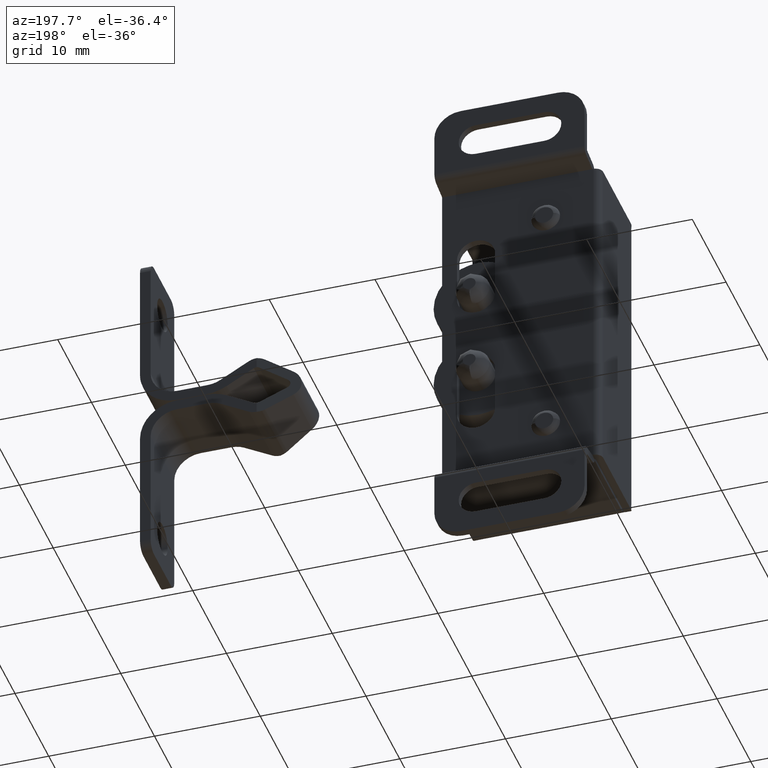
[diagram: clean part render]
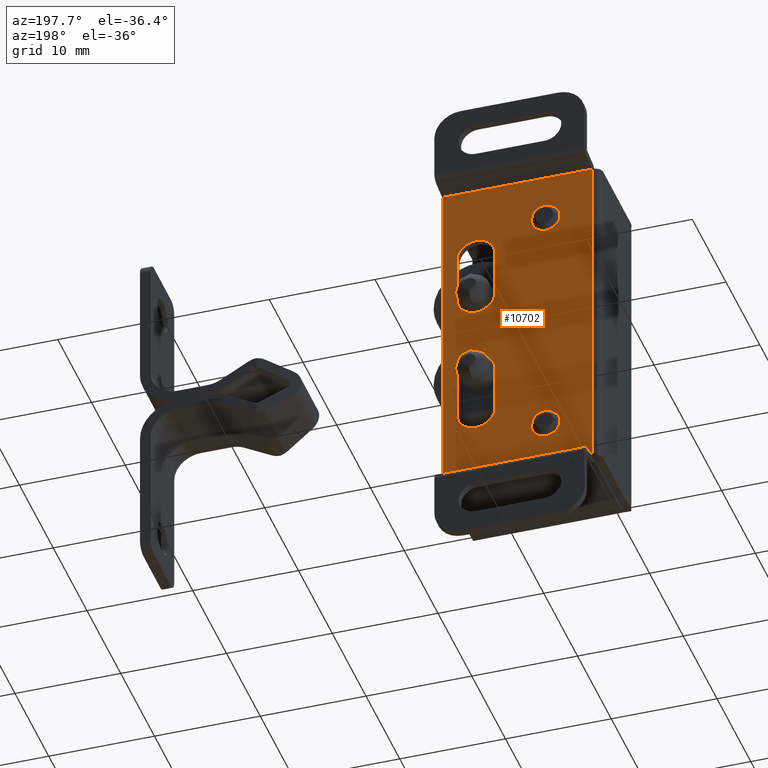
[diagram: same view with one face highlighted and labeled with its STEP entity id]
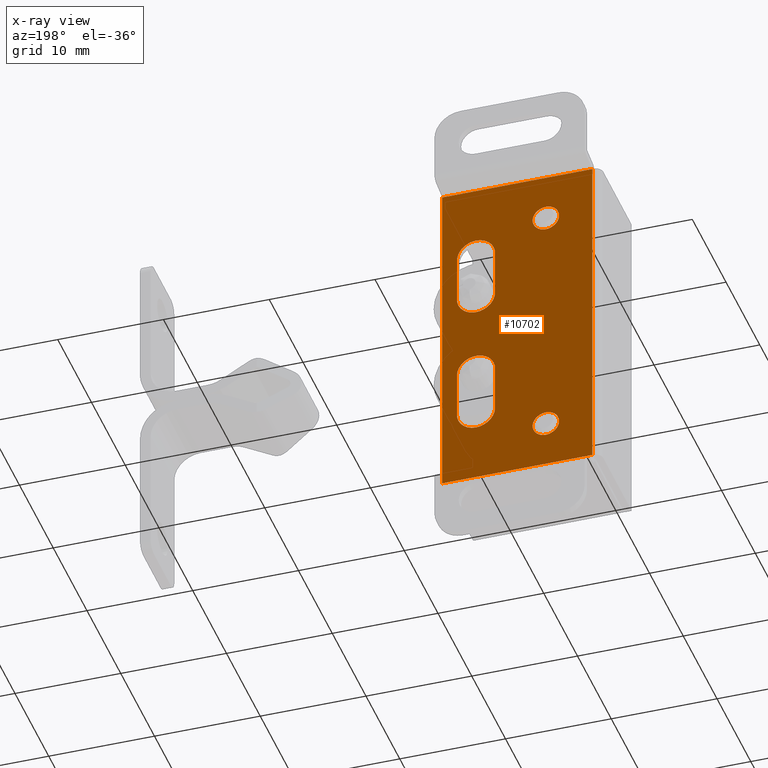
[diagram: x-ray of the same camera — body ghosted, the highlighted face saturated]
A machine part, auxiliary view. The second image highlights one B-rep face of the part: STEP entity #10702.
The next image is the same camera in x-ray: the body ghosted, the highlighted face saturated — about 0% of this face is hidden behind the body in this view.
In plain terms, the highlighted face is a freeform B-spline surface patch.
Its self-contained STEP definition (entity closure, byte-faithful):
#6928=CARTESIAN_POINT('',(-3.541562949340214,-2.299987999995877,-7.623863601232861));
#6929=VERTEX_POINT('',#6928);
#6930=CARTESIAN_POINT('',(-3.899999999999725,-2.299988000000750,-8.500000829116800));
#6931=VERTEX_POINT('',#6930);
#6932=CARTESIAN_POINT('',(-3.541562949340214,-2.299987999995877,-7.623863601232861));
#6933=CARTESIAN_POINT('',(-3.619562462102685,-2.299987999996320,-7.703185542203550));
#6934=CARTESIAN_POINT('',(-3.748020511466764,-2.299987999997272,-7.874672480167555));
#6935=CARTESIAN_POINT('',(-3.871469899992608,-2.299987999998952,-8.176400939124711));
#6936=CARTESIAN_POINT('',(-3.900032646125774,-2.299988000000128,-8.388754368270066));
#6937=CARTESIAN_POINT('',(-3.899999999999725,-2.299988000000750,-8.500000829116800));
#6938=B_SPLINE_CURVE_WITH_KNOTS('',3,(#6932,#6933,#6934,#6935,#6936,#6937),.UNSPECIFIED.,.F.,.U.,(4,1,1,4),(0.000000012919390,0.333737889316278,0.637126041490438,0.970863917909186),.UNSPECIFIED.);
#6939=EDGE_CURVE('',#6929,#6931,#6938,.T.);
#6999=CARTESIAN_POINT('',(-1.773863308124251,-2.299988000005520,-7.608436757561162));
#7000=VERTEX_POINT('',#6999);
#7006=CARTESIAN_POINT('',(-1.400000000000275,-2.299988000000750,-8.499999170883200));
#7007=VERTEX_POINT('',#7006);
#7008=CARTESIAN_POINT('',(-1.400000000000275,-2.299988000000750,-8.499999170883200));
#7009=CARTESIAN_POINT('',(-1.399954569368666,-2.299988000001359,-8.386251429322041));
#7010=CARTESIAN_POINT('',(-1.424175943017078,-2.299988000002297,-8.210497818273730));
#7011=CARTESIAN_POINT('',(-1.537122024799070,-2.299988000003968,-7.898496758450788));
#7012=CARTESIAN_POINT('',(-1.663109979836927,-2.299988000004940,-7.717061370083966));
#7013=CARTESIAN_POINT('',(-1.773863308124251,-2.299988000005520,-7.608436757561162));
#7014=B_SPLINE_CURVE_WITH_KNOTS('',3,(#7008,#7009,#7010,#7011,#7012,#7013),.UNSPECIFIED.,.F.,.U.,(4,1,1,4),(7.948059E-009,0.341234144013857,0.527361488337864,0.992680778465412),.UNSPECIFIED.);
#7015=EDGE_CURVE('',#7007,#7000,#7014,.T.);
#7017=CARTESIAN_POINT('',(-2.650000000000000,-2.299988000000750,-9.750000000000000));
#7018=VERTEX_POINT('',#7017);
#7019=CARTESIAN_POINT('',(-2.650000000000000,-2.299988000000750,-9.750000000000000));
#7020=CARTESIAN_POINT('',(-2.496578360806369,-2.299988000000751,-9.750143634505113));
#7021=CARTESIAN_POINT('',(-2.261472606949126,-2.299988000000749,-9.706131781038433));
#7022=CARTESIAN_POINT('',(-1.995301082631591,-2.299988000000753,-9.572106423024371));
#7023=CARTESIAN_POINT('',(-1.805861456801641,-2.299988000000746,-9.431618560850357));
#7024=CARTESIAN_POINT('',(-1.644795929768097,-2.299988000000744,-9.258245188719597));
#7025=CARTESIAN_POINT('',(-1.512726247500317,-2.299988000000762,-9.037890919326291));
#7026=CARTESIAN_POINT('',(-1.422722553807710,-2.299988000000746,-8.786328000139640));
#7027=CARTESIAN_POINT('',(-1.399971978766821,-2.299988000000754,-8.602266561734709));
#7028=CARTESIAN_POINT('',(-1.400000000000275,-2.299988000000750,-8.499999170883200));
#7029=B_SPLINE_CURVE_WITH_KNOTS('',3,(#7019,#7020,#7021,#7022,#7023,#7024,#7025,#7026,#7027,#7028),.UNSPECIFIED.,.F.,.U.,(4,1,1,1,1,1,1,4),(0.000000017902722,0.460204813831300,0.705654203425540,0.889732975772120,1.165849819909288,1.411295517278129,1.656747095446491,1.963545147733822),.UNSPECIFIED.);
#7030=EDGE_CURVE('',#7018,#7007,#7029,.T.);
#7032=CARTESIAN_POINT('',(-3.899999999999725,-2.299988000000750,-8.500000829116800));
#7033=CARTESIAN_POINT('',(-3.900078944133992,-2.299988000000750,-8.632956427035305));
#7034=CARTESIAN_POINT('',(-3.865395596078050,-2.299988000000749,-8.847660215561453));
#7035=CARTESIAN_POINT('',(-3.744618282675718,-2.299988000000754,-9.120095054182587));
#7036=CARTESIAN_POINT('',(-3.584877961045416,-2.299988000000742,-9.346949767953571));
#7037=CARTESIAN_POINT('',(-3.360687845894720,-2.299988000000767,-9.545209368983453));
#7038=CARTESIAN_POINT('',(-3.038544009096587,-2.299988000000723,-9.707335331827570));
#7039=CARTESIAN_POINT('',(-2.793187401281901,-2.299988000000784,-9.750110869173012));
#7040=CARTESIAN_POINT('',(-2.650000000000000,-2.299988000000750,-9.750000000000000));
#7041=B_SPLINE_CURVE_WITH_KNOTS('',3,(#7032,#7033,#7034,#7035,#7036,#7037,#7038,#7039,#7040),.UNSPECIFIED.,.F.,.U.,(4,1,1,1,1,1,4),(0.000000019040912,0.398841272213958,0.644292762528633,0.889732554173083,1.227209115856783,1.534021483307861,1.963544213102614),.UNSPECIFIED.);
#7042=EDGE_CURVE('',#6931,#7018,#7041,.T.);
#7061=CARTESIAN_POINT('',(-2.650000000000000,-2.299988000000750,-7.250000000000000));
#7062=VERTEX_POINT('',#7061);
#7063=CARTESIAN_POINT('',(-2.650000000000000,-2.299988000000750,-7.250000000000000));
#7064=CARTESIAN_POINT('',(-2.763744818870896,-2.299988000000126,-7.249964421117529));
#7065=CARTESIAN_POINT('',(-2.960187381217350,-2.299987999999062,-7.277004973505614));
#7066=CARTESIAN_POINT('',(-3.269939011954360,-2.299987999997354,-7.397947257608832));
#7067=CARTESIAN_POINT('',(-3.447396324833393,-2.299987999996400,-7.527918605888487));
#7068=CARTESIAN_POINT('',(-3.541562949340214,-2.299987999995877,-7.623863601232861));
#7069=B_SPLINE_CURVE_WITH_KNOTS('',3,(#7063,#7064,#7065,#7066,#7067,#7068),.UNSPECIFIED.,.F.,.U.,(4,1,1,4),(7.927626E-009,0.341234373714027,0.589404374629492,0.992681446685964),.UNSPECIFIED.);
#7070=EDGE_CURVE('',#7062,#6929,#7069,.T.);
#7072=CARTESIAN_POINT('',(-1.773863308124251,-2.299988000005520,-7.608436757561162));
#7073=CARTESIAN_POINT('',(-1.853185328979082,-2.299988000005088,-7.530437278162631));
#7074=CARTESIAN_POINT('',(-2.024672238474843,-2.299988000004155,-7.401979370465022));
#7075=CARTESIAN_POINT('',(-2.326400358022668,-2.299988000002510,-7.278530161139138));
#7076=CARTESIAN_POINT('',(-2.538753583863379,-2.299988000001355,-7.249967489685439));
#7077=CARTESIAN_POINT('',(-2.650000000000000,-2.299988000000750,-7.250000000000000));
#7078=B_SPLINE_CURVE_WITH_KNOTS('',3,(#7072,#7073,#7074,#7075,#7076,#7077),.UNSPECIFIED.,.F.,.U.,(4,1,1,4),(0.000000012900579,0.333737660866299,0.637125605379456,0.970863253323287),.UNSPECIFIED.);
#7079=EDGE_CURVE('',#7000,#7062,#7078,.T.);
#7328=CARTESIAN_POINT('',(-3.541562949340214,-2.299987999995877,-30.623863601232859));
#7329=VERTEX_POINT('',#7328);
#7330=CARTESIAN_POINT('',(-3.899999999999725,-2.299988000000750,-31.500000829116800));
#7331=VERTEX_POINT('',#7330);
#7332=CARTESIAN_POINT('',(-3.541562949340214,-2.299987999995877,-30.623863601232859));
#7333=CARTESIAN_POINT('',(-3.648004415012986,-2.299987999996478,-30.731976927571761));
#7334=CARTESIAN_POINT('',(-3.780267967002692,-2.299987999997569,-30.927966734807711));
#7335=CARTESIAN_POINT('',(-3.881137305279959,-2.299987999999288,-31.237070594451829));
#7336=CARTESIAN_POINT('',(-3.900016112612316,-2.299988000000248,-31.408983734035068));
#7337=CARTESIAN_POINT('',(-3.899999999999725,-2.299988000000750,-31.500000829116800));
#7338=B_SPLINE_CURVE_WITH_KNOTS('',3,(#7332,#7333,#7334,#7335,#7336,#7337),.UNSPECIFIED.,.F.,.U.,(4,1,1,4),(0.000000012919637,0.455094484843803,0.697807124153792,0.970863917909188),.UNSPECIFIED.);
#7339=EDGE_CURVE('',#7329,#7331,#7338,.T.);
#7400=CARTESIAN_POINT('',(-1.773863308124251,-2.299988000005520,-30.608436757561162));
#7401=VERTEX_POINT('',#7400);
#7407=CARTESIAN_POINT('',(-1.400000000000275,-2.299988000000750,-31.499999170883200));
#7408=VERTEX_POINT('',#7407);
#7409=CARTESIAN_POINT('',(-1.400000000000275,-2.299988000000750,-31.499999170883200));
#7410=CARTESIAN_POINT('',(-1.399849578204989,-2.299988000001580,-31.344870826045408));
#7411=CARTESIAN_POINT('',(-1.444860728616615,-2.299988000002856,-31.107161350440460));
#7412=CARTESIAN_POINT('',(-1.595945432916498,-2.299988000004431,-30.810936113919681));
#7413=CARTESIAN_POINT('',(-1.707472509281692,-2.299988000005172,-30.673652551486150));
#7414=CARTESIAN_POINT('',(-1.773863308124251,-2.299988000005520,-30.608436757561162));
#7415=B_SPLINE_CURVE_WITH_KNOTS('',3,(#7409,#7410,#7411,#7412,#7413,#7414),.UNSPECIFIED.,.F.,.U.,(4,1,1,4),(7.947728E-009,0.465319298045852,0.713489296250173,0.992680778465414),.UNSPECIFIED.);
#7416=EDGE_CURVE('',#7408,#7401,#7415,.T.);
#7418=CARTESIAN_POINT('',(-2.650000000000000,-2.299988000000750,-32.750000000000000));
#7419=VERTEX_POINT('',#7418);
#7420=CARTESIAN_POINT('',(-2.650000000000000,-2.299988000000750,-32.750000000000000));
#7421=CARTESIAN_POINT('',(-2.517046344154720,-2.299988000000752,-32.750066285231647));
#7422=CARTESIAN_POINT('',(-2.302342520505152,-2.299988000000750,-32.715403724987688));
#7423=CARTESIAN_POINT('',(-1.982903388613184,-2.299988000000750,-32.573828337150502));
#7424=CARTESIAN_POINT('',(-1.748401482522974,-2.299988000000749,-32.386188048743442));
#7425=CARTESIAN_POINT('',(-1.570942895640592,-2.299988000000750,-32.146760716479442));
#7426=CARTESIAN_POINT('',(-1.439078853839953,-2.299988000000751,-31.868098083755349));
#7427=CARTESIAN_POINT('',(-1.399915065108486,-2.299988000000750,-31.643182883535740));
#7428=CARTESIAN_POINT('',(-1.400000000000275,-2.299988000000750,-31.499999170883200));
#7429=B_SPLINE_CURVE_WITH_KNOTS('',3,(#7420,#7421,#7422,#7423,#7424,#7425,#7426,#7427,#7428),.UNSPECIFIED.,.F.,.U.,(4,1,1,1,1,1,4),(0.000000017903906,0.398841461106950,0.644293068158105,1.043131879065077,1.288570635059767,1.534022213727042,1.963545147733824),.UNSPECIFIED.);
#7430=EDGE_CURVE('',#7419,#7408,#7429,.T.);
#7432=CARTESIAN_POINT('',(-3.899999999999725,-2.299988000000750,-31.500000829116800));
#7433=CARTESIAN_POINT('',(-3.900066839262281,-2.299988000000750,-31.632954655605030));
#7434=CARTESIAN_POINT('',(-3.865403360709047,-2.299988000000754,-31.847658142285781));
#7435=CARTESIAN_POINT('',(-3.723829077207948,-2.299988000000743,-32.167097160547982));
#7436=CARTESIAN_POINT('',(-3.536188542019236,-2.299988000000761,-32.401599156452512));
#7437=CARTESIAN_POINT('',(-3.296761390457250,-2.299988000000729,-32.579057801481369));
#7438=CARTESIAN_POINT('',(-3.018098522248495,-2.299988000000797,-32.710920888896588));
#7439=CARTESIAN_POINT('',(-2.793183852503006,-2.299988000000720,-32.750084616628072));
#7440=CARTESIAN_POINT('',(-2.650000000000000,-2.299988000000750,-32.750000000000000));
#7441=B_SPLINE_CURVE_WITH_KNOTS('',3,(#7432,#7433,#7434,#7435,#7436,#7437,#7438,#7439,#7440),.UNSPECIFIED.,.F.,.U.,(4,1,1,1,1,1,4),(0.000000019043080,0.398841272215554,0.644292762529922,1.043131384819023,1.288570022078112,1.534021483308387,1.963544213102573),.UNSPECIFIED.);
#7442=EDGE_CURVE('',#7331,#7419,#7441,.T.);
#7461=CARTESIAN_POINT('',(-2.650000000000000,-2.299988000000750,-30.250000000000000));
#7462=VERTEX_POINT('',#7461);
#7463=CARTESIAN_POINT('',(-2.650000000000000,-2.299988000000750,-30.250000000000000));
#7464=CARTESIAN_POINT('',(-2.805125854675955,-2.299987999999902,-30.249866293521318));
#7465=CARTESIAN_POINT('',(-3.042840598023612,-2.299987999998605,-30.294847091297019));
#7466=CARTESIAN_POINT('',(-3.339063558866331,-2.299987999996981,-30.445946212979180));
#7467=CARTESIAN_POINT('',(-3.476346748186198,-2.299987999996237,-30.557474898979532));
#7468=CARTESIAN_POINT('',(-3.541562949340214,-2.299987999995877,-30.623863601232859));
#7469=B_SPLINE_CURVE_WITH_KNOTS('',3,(#7463,#7464,#7465,#7466,#7467,#7468),.UNSPECIFIED.,.F.,.U.,(4,1,1,4),(7.927537E-009,0.465319611293694,0.713489776531634,0.992681446685965),.UNSPECIFIED.);
#7470=EDGE_CURVE('',#7462,#7329,#7469,.T.);
#7472=CARTESIAN_POINT('',(-1.773863308124251,-2.299988000005520,-30.608436757561162));
#7473=CARTESIAN_POINT('',(-1.881982174489071,-2.299988000004932,-30.502005946430749));
#7474=CARTESIAN_POINT('',(-2.086480799770182,-2.299988000003819,-30.363964293191110));
#7475=CARTESIAN_POINT('',(-2.397182417376228,-2.299988000002127,-30.266747235556959));
#7476=CARTESIAN_POINT('',(-2.569096111989747,-2.299988000001191,-30.249991307701091));
#7477=CARTESIAN_POINT('',(-2.650000000000000,-2.299988000000750,-30.250000000000000));
#7478=B_SPLINE_CURVE_WITH_KNOTS('',3,(#7472,#7473,#7474,#7475,#7476,#7477),.UNSPECIFIED.,.F.,.U.,(4,1,1,4),(0.000000012900383,0.455094173284750,0.728147443233237,0.970863253323289),.UNSPECIFIED.);
#7479=EDGE_CURVE('',#7401,#7462,#7478,.T.);
#7958=CARTESIAN_POINT('',(5.749998000000000,-2.299988000000750,-15.754242637736750));
#7959=VERTEX_POINT('',#7958);
#7967=CARTESIAN_POINT('',(3.947880400870928,-2.299988000000750,-17.549998750849380));
#7968=VERTEX_POINT('',#7967);
#7969=CARTESIAN_POINT('',(3.947880400870928,-2.299988000000750,-17.549998750849380));
#7970=CARTESIAN_POINT('',(4.153913364151302,-2.299988000000748,-17.550395190385711));
#7971=CARTESIAN_POINT('',(4.499679581039820,-2.299988000000750,-17.490589212363631));
#7972=CARTESIAN_POINT('',(4.971296018134256,-2.299988000000751,-17.257748846144160));
#7973=CARTESIAN_POINT('',(5.306093096187571,-2.299988000000747,-16.962725625942522));
#7974=CARTESIAN_POINT('',(5.543133381913089,-2.299988000000772,-16.613975652696979));
#7975=CARTESIAN_POINT('',(5.705207684722176,-2.299988000000724,-16.224981899562621));
#7976=CARTESIAN_POINT('',(5.749666514224982,-2.299988000000756,-15.930834702553060));
#7977=CARTESIAN_POINT('',(5.749998000000000,-2.299988000000750,-15.754242637736750));
#7978=B_SPLINE_CURVE_WITH_KNOTS('',3,(#7969,#7970,#7971,#7972,#7973,#7974,#7975,#7976,#7977),.UNSPECIFIED.,.F.,.U.,(4,1,1,1,1,1,4),(0.000000059116856,0.618040119911736,1.037427682386042,1.567168908335190,1.942413056614692,2.295582261516887,2.825330192955224),.UNSPECIFIED.);
#7979=EDGE_CURVE('',#7968,#7959,#7978,.T.);
#7981=CARTESIAN_POINT('',(2.149999000000000,-2.299988000000750,-15.750000000000000));
#7982=VERTEX_POINT('',#7981);
#7983=CARTESIAN_POINT('',(2.149999000000000,-2.299988000000750,-15.750000000000000));
#7984=CARTESIAN_POINT('',(2.149912701607313,-2.299988000000751,-15.933952106874809));
#7985=CARTESIAN_POINT('',(2.193245967015193,-2.299988000000752,-16.213474235065782));
#7986=CARTESIAN_POINT('',(2.351758858502240,-2.299988000000751,-16.603207002880531));
#7987=CARTESIAN_POINT('',(2.547343188269115,-2.299988000000759,-16.900137509601290));
#7988=CARTESIAN_POINT('',(2.811774458127753,-2.299988000000728,-17.158445127742819));
#7989=CARTESIAN_POINT('',(3.101556796811779,-2.299988000000788,-17.349814660425999));
#7990=CARTESIAN_POINT('',(3.477085974757319,-2.299988000000716,-17.505769052672019));
#7991=CARTESIAN_POINT('',(3.771288444000819,-2.299988000000771,-17.549874635950061));
#7992=CARTESIAN_POINT('',(3.947880400870928,-2.299988000000750,-17.549998750849380));
#7993=B_SPLINE_CURVE_WITH_KNOTS('',3,(#7983,#7984,#7985,#7986,#7987,#7988,#7989,#7990,#7991,#7992),.UNSPECIFIED.,.F.,.U.,(4,1,1,1,1,1,1,4),(0.000000059116975,0.551818520637684,0.838772216695333,1.258162752885529,1.611310389181563,1.942414045062378,2.295583429685209,2.825331630699676),.UNSPECIFIED.);
#7994=EDGE_CURVE('',#7982,#7968,#7993,.T.);
#8040=CARTESIAN_POINT('',(2.150003000000000,-2.299988000000750,-11.349998999999981));
#8041=VERTEX_POINT('',#8040);
#8042=CARTESIAN_POINT('',(2.150003000000000,-2.299988000000750,-11.349998999999981));
#8043=CARTESIAN_POINT('',(2.149999000000000,-2.299988000000750,-15.750000000000000));
#8044=QUASI_UNIFORM_CURVE('',1,(#8042,#8043),.UNSPECIFIED.,.F.,.U.);
#8045=EDGE_CURVE('',#8041,#7982,#8044,.T.);
#8081=CARTESIAN_POINT('',(3.947880959622001,-2.299988000000750,-9.550000250849127));
#8082=VERTEX_POINT('',#8081);
#8083=CARTESIAN_POINT('',(3.947880959622001,-2.299988000000750,-9.550000250849127));
#8084=CARTESIAN_POINT('',(3.793369608986890,-2.299988000000755,-9.550139307945502));
#8085=CARTESIAN_POINT('',(3.513843153320429,-2.299988000000743,-9.586734792811143));
#8086=CARTESIAN_POINT('',(3.154226169239373,-2.299988000000758,-9.723308103709369));
#8087=CARTESIAN_POINT('',(2.871448516685355,-2.299988000000742,-9.897858289323295));
#8088=CARTESIAN_POINT('',(2.628177926870961,-2.299988000000756,-10.113251351440660));
#8089=CARTESIAN_POINT('',(2.387195735792095,-2.299988000000749,-10.422233578467541));
#8090=CARTESIAN_POINT('',(2.198070863824466,-2.299988000000751,-10.842347203560539));
#8091=CARTESIAN_POINT('',(2.149946205593559,-2.299988000000751,-11.180771402465650));
#8092=CARTESIAN_POINT('',(2.150003000000000,-2.299988000000750,-11.349998999999981));
#8093=B_SPLINE_CURVE_WITH_KNOTS('',3,(#8083,#8084,#8085,#8086,#8087,#8088,#8089,#8090,#8091,#8092),.UNSPECIFIED.,.F.,.U.,(4,1,1,1,1,1,1,4),(0.000000059120850,0.463528166307742,0.838771450075751,1.147792811157846,1.456799581158528,1.809967523681601,2.317657984878991,2.825329048397229),.UNSPECIFIED.);
#8094=EDGE_CURVE('',#8082,#8041,#8093,.T.);
#8096=CARTESIAN_POINT('',(5.749998000000000,-2.299988000000750,-11.345756362263240));
#8097=VERTEX_POINT('',#8096);
#8098=CARTESIAN_POINT('',(5.749998000000000,-2.299988000000750,-11.345756362263240));
#8099=CARTESIAN_POINT('',(5.749670244799375,-2.299988000000750,-11.139716590192350));
#8100=CARTESIAN_POINT('',(5.700321652183813,-2.299988000000754,-10.860348670414400));
#8101=CARTESIAN_POINT('',(5.548534692537961,-2.299988000000748,-10.508354432587710));
#8102=CARTESIAN_POINT('',(5.400868184932343,-2.299988000000752,-10.269740264615709));
#8103=CARTESIAN_POINT('',(5.155808609157690,-2.299988000000742,-9.993531456381755));
#8104=CARTESIAN_POINT('',(4.866637430004768,-2.299988000000766,-9.785255913605623));
#8105=CARTESIAN_POINT('',(4.448164799857878,-2.299988000000761,-9.600513491899834));
#8106=CARTESIAN_POINT('',(4.153921255269940,-2.299988000000730,-9.549608255637747));
#8107=CARTESIAN_POINT('',(3.947880959622001,-2.299988000000750,-9.550000250849127));
#8108=B_SPLINE_CURVE_WITH_KNOTS('',3,(#8098,#8099,#8100,#8101,#8102,#8103,#8104,#8105,#8106,#8107),.UNSPECIFIED.,.F.,.U.,(4,1,1,1,1,1,1,4),(0.000000059123574,0.618040184563632,0.838771877610776,1.147793396208711,1.456800323694249,1.942413259800364,2.207291084473840,2.825330488498266),.UNSPECIFIED.);
#8109=EDGE_CURVE('',#8097,#8082,#8108,.T.);
#8155=CARTESIAN_POINT('',(5.749998000000000,-2.299988000000750,-15.754242637736750));
#8156=CARTESIAN_POINT('',(5.749998000000000,-2.299988000000750,-11.345756362263240));
#8157=QUASI_UNIFORM_CURVE('',1,(#8155,#8156),.UNSPECIFIED.,.F.,.U.);
#8158=EDGE_CURVE('',#7959,#8097,#8157,.T.);
#8418=CARTESIAN_POINT('',(2.150003000000000,-2.299988000000750,-24.250000000000000));
#8419=VERTEX_POINT('',#8418);
#8427=CARTESIAN_POINT('',(3.947880959621996,-2.299988000000750,-22.450001250849141));
#8428=VERTEX_POINT('',#8427);
#8429=CARTESIAN_POINT('',(3.947880959621996,-2.299988000000750,-22.450001250849141));
#8430=CARTESIAN_POINT('',(3.815445294709785,-2.299988000000746,-22.450134225177550));
#8431=CARTESIAN_POINT('',(3.587404672219983,-2.299988000000749,-22.475721475455501));
#8432=CARTESIAN_POINT('',(3.213841706806127,-2.299988000000754,-22.591890012200430));
#8433=CARTESIAN_POINT('',(2.884534993038383,-2.299988000000750,-22.778791546833709));
#8434=CARTESIAN_POINT('',(2.581396454146623,-2.299988000000750,-23.060783808807830));
#8435=CARTESIAN_POINT('',(2.338551684825027,-2.299988000000750,-23.405849678101600));
#8436=CARTESIAN_POINT('',(2.183394619165219,-2.299988000000753,-23.815893375297978));
#8437=CARTESIAN_POINT('',(2.149990585399898,-2.299988000000748,-24.117568868167041));
#8438=CARTESIAN_POINT('',(2.150003000000000,-2.299988000000750,-24.250000000000000));
#8439=B_SPLINE_CURVE_WITH_KNOTS('',3,(#8429,#8430,#8431,#8432,#8433,#8434,#8435,#8436,#8437,#8438),.UNSPECIFIED.,.F.,.U.,(4,1,1,1,1,1,1,4),(0.000000059122186,0.397303889272274,0.684259069082641,1.169875861581670,1.523025652049821,1.920335616417678,2.428026077614800,2.825329048397229),.UNSPECIFIED.);
#8440=EDGE_CURVE('',#8428,#8419,#8439,.T.);
#8442=CARTESIAN_POINT('',(5.749998000000000,-2.299988000000750,-24.245757362263252));
#8443=VERTEX_POINT('',#8442);
#8444=CARTESIAN_POINT('',(5.749998000000000,-2.299988000000750,-24.245757362263252));
#8445=CARTESIAN_POINT('',(5.749644522194759,-2.299988000000750,-24.039726238812339));
#8446=CARTESIAN_POINT('',(5.691258860969658,-2.299988000000744,-23.708870909870409));
#8447=CARTESIAN_POINT('',(5.501370474827789,-2.299988000000756,-23.315863890977759));
#8448=CARTESIAN_POINT('',(5.302913299240470,-2.299988000000744,-23.049327260186111));
#8449=CARTESIAN_POINT('',(5.051134259056110,-2.299988000000758,-22.810421398062520));
#8450=CARTESIAN_POINT('',(4.761853082819133,-2.299988000000743,-22.630354326981038));
#8451=CARTESIAN_POINT('',(4.381983345169370,-2.299988000000758,-22.487139130078528));
#8452=CARTESIAN_POINT('',(4.117113936803404,-2.299988000000746,-22.449733877902052));
#8453=CARTESIAN_POINT('',(3.947880959621996,-2.299988000000750,-22.450001250849141));
#8454=B_SPLINE_CURVE_WITH_KNOTS('',3,(#8444,#8445,#8446,#8447,#8448,#8449,#8450,#8451,#8452,#8453),.UNSPECIFIED.,.F.,.U.,(4,1,1,1,1,1,1,4),(0.000000059120110,0.618040184561358,0.993283627515971,1.302303330694992,1.611309737756880,2.030704676974676,2.317659166220648,2.825330488498266),.UNSPECIFIED.);
#8455=EDGE_CURVE('',#8443,#8428,#8454,.T.);
#8508=CARTESIAN_POINT('',(2.150003000000000,-2.299988000000750,-28.650002000000001));
#8509=VERTEX_POINT('',#8508);
#8515=CARTESIAN_POINT('',(2.150003000000000,-2.299988000000750,-28.650002000000001));
#8516=CARTESIAN_POINT('',(2.150003000000000,-2.299988000000750,-24.250000000000000));
#8517=QUASI_UNIFORM_CURVE('',1,(#8515,#8516),.UNSPECIFIED.,.F.,.U.);
#8518=EDGE_CURVE('',#8509,#8419,#8517,.T.);
#8542=CARTESIAN_POINT('',(5.749998000000000,-2.299988000000750,-28.654244637736749));
#8543=VERTEX_POINT('',#8542);
#8551=CARTESIAN_POINT('',(3.947882399694977,-2.299988000000750,-30.450000750848002));
#8552=VERTEX_POINT('',#8551);
#8553=CARTESIAN_POINT('',(3.947882399694977,-2.299988000000750,-30.450000750848002));
#8554=CARTESIAN_POINT('',(4.153917488341694,-2.299988000000747,-30.450391456479320));
#8555=CARTESIAN_POINT('',(4.484964975692966,-2.299988000000755,-30.393135991649849));
#8556=CARTESIAN_POINT('',(4.905353051709104,-2.299988000000744,-30.191902151923319));
#8557=CARTESIAN_POINT('',(5.168292277726345,-2.299988000000749,-29.987396640107800));
#8558=CARTESIAN_POINT('',(5.401428103877064,-2.299988000000752,-29.731108534145861));
#8559=CARTESIAN_POINT('',(5.562828753391532,-2.299988000000752,-29.473849781086120));
#8560=CARTESIAN_POINT('',(5.709641524717072,-2.299988000000750,-29.095560828944940));
#8561=CARTESIAN_POINT('',(5.749670370994668,-2.299988000000747,-28.830839292912142));
#8562=CARTESIAN_POINT('',(5.749998000000000,-2.299988000000750,-28.654244637736749));
#8563=B_SPLINE_CURVE_WITH_KNOTS('',3,(#8553,#8554,#8555,#8556,#8557,#8558,#8559,#8560,#8561,#8562),.UNSPECIFIED.,.F.,.U.,(4,1,1,1,1,1,1,4),(0.000000059118026,0.618039869539631,0.993283121221753,1.390609510811482,1.611308916468015,2.030703641904073,2.295581331563760,2.825329048397211),.UNSPECIFIED.);
#8564=EDGE_CURVE('',#8552,#8543,#8563,.T.);
#8566=CARTESIAN_POINT('',(2.150003000000000,-2.299988000000750,-28.650002000000001));
#8567=CARTESIAN_POINT('',(2.149977019771718,-2.299988000000754,-28.782438147530758));
#8568=CARTESIAN_POINT('',(2.175298194306726,-2.299988000000747,-29.010509606347298));
#8569=CARTESIAN_POINT('',(2.284497259311197,-2.299988000000752,-29.363040247386110));
#8570=CARTESIAN_POINT('',(2.478578028380347,-2.299988000000751,-29.721261913415731));
#8571=CARTESIAN_POINT('',(2.804191726656211,-2.299988000000751,-30.067918379477380));
#8572=CARTESIAN_POINT('',(3.186140105727428,-2.299988000000751,-30.297200604328491));
#8573=CARTESIAN_POINT('',(3.572693035323568,-2.299988000000751,-30.422631848019961));
#8574=CARTESIAN_POINT('',(3.815446081948410,-2.299988000000751,-30.449870289494910));
#8575=CARTESIAN_POINT('',(3.947882399694977,-2.299988000000750,-30.450000750848002));
#8576=B_SPLINE_CURVE_WITH_KNOTS('',3,(#8566,#8567,#8568,#8569,#8570,#8571,#8572,#8573,#8574,#8575),.UNSPECIFIED.,.F.,.U.,(4,1,1,1,1,1,1,4),(0.000000059123056,0.397304091773675,0.684259417856990,1.103652479446911,1.611309737756741,2.096924724761381,2.428027315215551,2.825330488498270),.UNSPECIFIED.);
#8577=EDGE_CURVE('',#8509,#8552,#8576,.T.);
#8622=CARTESIAN_POINT('',(5.749998000000000,-2.299988000000750,-24.245757362263252));
#8623=CARTESIAN_POINT('',(5.749998000000000,-2.299988000000750,-28.654244637736749));
#8624=QUASI_UNIFORM_CURVE('',1,(#8622,#8623),.UNSPECIFIED.,.F.,.U.);
#8625=EDGE_CURVE('',#8443,#8543,#8624,.T.);
#10143=CARTESIAN_POINT('',(-7.050001000000000,-2.300000000000000,-36.0));
#10144=VERTEX_POINT('',#10143);
#10198=CARTESIAN_POINT('',(-7.050001000000000,-2.300000000000000,-4.0));
#10199=VERTEX_POINT('',#10198);
#10205=CARTESIAN_POINT('',(-7.050001000000000,-2.300000000000000,-4.0));
#10206=CARTESIAN_POINT('',(-7.050001000000000,-2.300000000000000,-36.0));
#10207=QUASI_UNIFORM_CURVE('',1,(#10205,#10206),.UNSPECIFIED.,.F.,.U.);
#10208=EDGE_CURVE('',#10199,#10144,#10207,.T.);
#10280=CARTESIAN_POINT('',(7.149998999999999,-2.299988000000000,-36.0));
#10281=VERTEX_POINT('',#10280);
#10287=CARTESIAN_POINT('',(7.149998999999999,-2.299988000000000,-4.0));
#10288=VERTEX_POINT('',#10287);
#10289=CARTESIAN_POINT('',(7.149998999999999,-2.299988000000000,-4.0));
#10290=CARTESIAN_POINT('',(7.149998999999999,-2.299988000000000,-36.0));
#10291=QUASI_UNIFORM_CURVE('',1,(#10289,#10290),.UNSPECIFIED.,.F.,.U.);
#10292=EDGE_CURVE('',#10288,#10281,#10291,.T.);
#10345=CARTESIAN_POINT('',(-7.050001000000000,-2.300000000000000,-36.0));
#10346=CARTESIAN_POINT('',(7.149998999999999,-2.299988000000000,-36.0));
#10347=QUASI_UNIFORM_CURVE('',1,(#10345,#10346),.UNSPECIFIED.,.F.,.U.);
#10348=EDGE_CURVE('',#10144,#10281,#10347,.T.);
#10365=CARTESIAN_POINT('',(-7.050001000000000,-2.300000000000000,-4.0));
#10366=CARTESIAN_POINT('',(7.149998999999999,-2.299988000000000,-4.0));
#10367=QUASI_UNIFORM_CURVE('',1,(#10365,#10366),.UNSPECIFIED.,.F.,.U.);
#10368=EDGE_CURVE('',#10199,#10288,#10367,.T.);
#10659=CARTESIAN_POINT('',(-7.759291105777088,-2.299988000000000,-2.401600062022210));
#10660=CARTESIAN_POINT('',(-7.759291105777088,-2.299988000000000,-37.598400796284679));
#10661=CARTESIAN_POINT('',(7.859289359692873,-2.299988000000000,-2.401600062022210));
#10662=CARTESIAN_POINT('',(7.859289359692873,-2.299988000000000,-37.598400796284679));
#10663=B_SPLINE_SURFACE_WITH_KNOTS('',1,1,((#10659,#10661),(#10660,#10662)),.UNSPECIFIED.,.F.,.F.,.U.,(2,2),(2,2),(0.0,35.196800734262467),(0.0,15.618580465469959),.UNSPECIFIED.);
#10664=ORIENTED_EDGE('',*,*,#10292,.T.);
#10665=ORIENTED_EDGE('',*,*,#10348,.F.);
#10666=ORIENTED_EDGE('',*,*,#10208,.F.);
#10667=ORIENTED_EDGE('',*,*,#10368,.T.);
#10668=EDGE_LOOP('',(#10664,#10665,#10666,#10667));
#10669=FACE_OUTER_BOUND('',#10668,.T.);
#10670=ORIENTED_EDGE('',*,*,#8158,.T.);
#10671=ORIENTED_EDGE('',*,*,#8109,.T.);
#10672=ORIENTED_EDGE('',*,*,#8094,.T.);
#10673=ORIENTED_EDGE('',*,*,#8045,.T.);
#10674=ORIENTED_EDGE('',*,*,#7994,.T.);
#10675=ORIENTED_EDGE('',*,*,#7979,.T.);
#10676=EDGE_LOOP('',(#10670,#10671,#10672,#10673,#10674,#10675));
#10677=FACE_BOUND('',#10676,.T.);
#10678=ORIENTED_EDGE('',*,*,#8625,.F.);
#10679=ORIENTED_EDGE('',*,*,#8455,.T.);
#10680=ORIENTED_EDGE('',*,*,#8440,.T.);
#10681=ORIENTED_EDGE('',*,*,#8518,.F.);
#10682=ORIENTED_EDGE('',*,*,#8577,.T.);
#10683=ORIENTED_EDGE('',*,*,#8564,.T.);
#10684=EDGE_LOOP('',(#10678,#10679,#10680,#10681,#10682,#10683));
#10685=FACE_BOUND('',#10684,.T.);
#10686=ORIENTED_EDGE('',*,*,#7430,.T.);
#10687=ORIENTED_EDGE('',*,*,#7416,.T.);
#10688=ORIENTED_EDGE('',*,*,#7479,.T.);
#10689=ORIENTED_EDGE('',*,*,#7470,.T.);
#10690=ORIENTED_EDGE('',*,*,#7339,.T.);
#10691=ORIENTED_EDGE('',*,*,#7442,.T.);
#10692=EDGE_LOOP('',(#10686,#10687,#10688,#10689,#10690,#10691));
#10693=FACE_BOUND('',#10692,.T.);
#10694=ORIENTED_EDGE('',*,*,#7030,.T.);
#10695=ORIENTED_EDGE('',*,*,#7015,.T.);
#10696=ORIENTED_EDGE('',*,*,#7079,.T.);
#10697=ORIENTED_EDGE('',*,*,#7070,.T.);
#10698=ORIENTED_EDGE('',*,*,#6939,.T.);
#10699=ORIENTED_EDGE('',*,*,#7042,.T.);
#10700=EDGE_LOOP('',(#10694,#10695,#10696,#10697,#10698,#10699));
#10701=FACE_BOUND('',#10700,.T.);
#10702=ADVANCED_FACE('',(#10669,#10677,#10685,#10693,#10701),#10663,.F.);